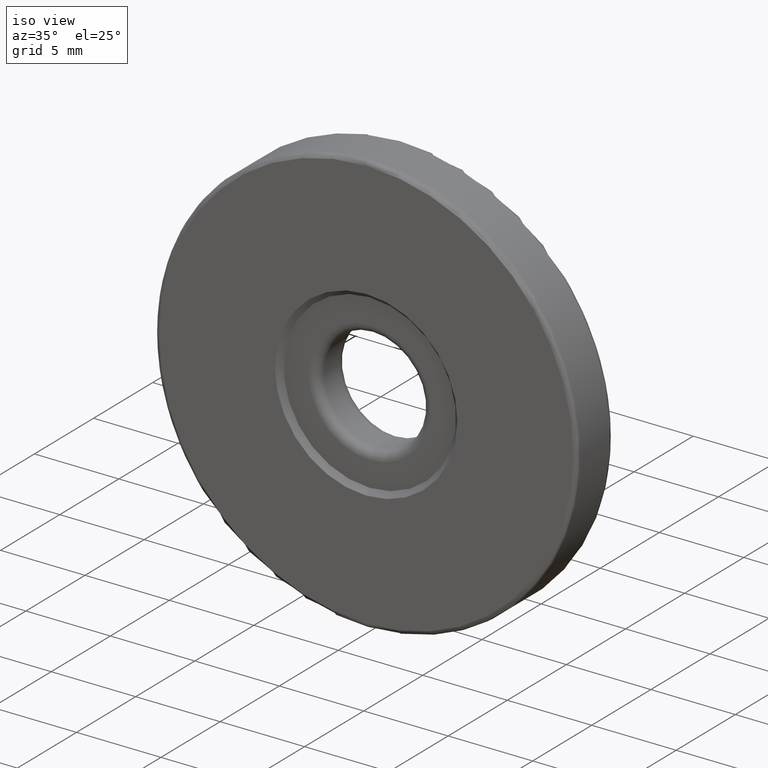
[diagram: clean part render]
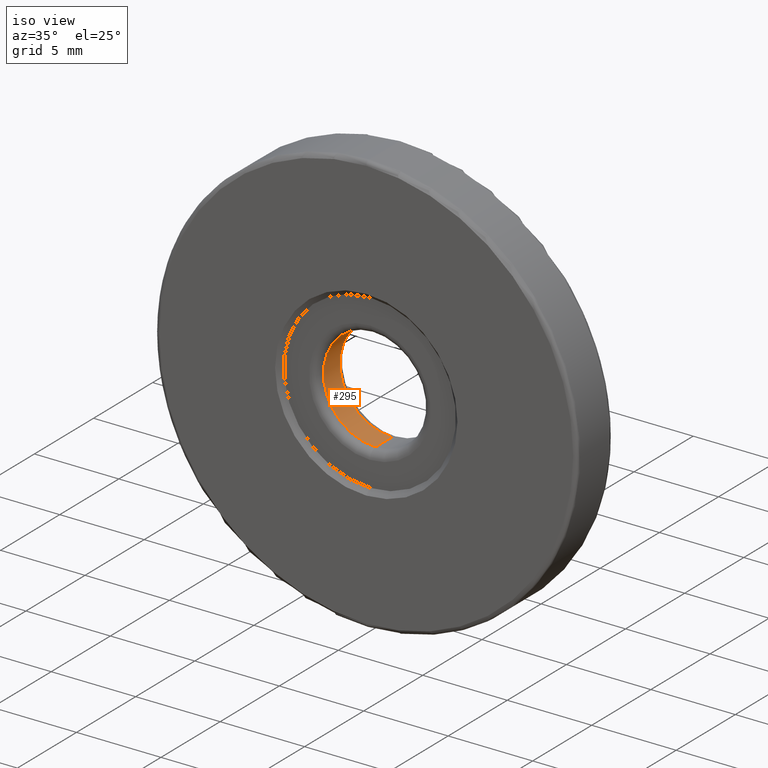
[diagram: same view with one face highlighted and labeled with its STEP entity id]
A machine part, iso view. The second image highlights one B-rep face of the part: STEP entity #295.
In plain terms, the highlighted cylindrical surface (partial cylindrical patch) has radius 3.1 mm, axis along (-0, 1, -0).
Its self-contained STEP definition (entity closure, byte-faithful):
#14 = DIRECTION ( 'NONE',  ( 0.0000000000000000000, 0.0000000000000000000, 1.000000000000000000 ) ) ;
#22 = VECTOR ( 'NONE', #591, 1000.000000000000000 ) ;
#28 = VERTEX_POINT ( 'NONE', #466 ) ;
#67 = LINE ( 'NONE', #394, #425 ) ;
#71 = CYLINDRICAL_SURFACE ( 'NONE', #282, 3.099999999999998757 ) ;
#115 = DIRECTION ( 'NONE',  ( -0.0000000000000000000, 1.000000000000000000, -0.0000000000000000000 ) ) ;
#127 = ORIENTED_EDGE ( 'NONE', *, *, #409, .T. ) ;
#144 = AXIS2_PLACEMENT_3D ( 'NONE', #269, #569, #271 ) ;
#147 = VERTEX_POINT ( 'NONE', #383 ) ;
#155 = CIRCLE ( 'NONE', #574, 3.099999999999998757 ) ;
#174 = CIRCLE ( 'NONE', #144, 3.099999999999998757 ) ;
#202 = EDGE_CURVE ( 'NONE', #147, #509, #599, .T. ) ;
#217 = DIRECTION ( 'NONE',  ( -0.0000000000000000000, 1.000000000000000000, -0.0000000000000000000 ) ) ;
#242 = ORIENTED_EDGE ( 'NONE', *, *, #202, .T. ) ;
#260 = CARTESIAN_POINT ( 'NONE',  ( -4.682026255059964726, -0.8949759769982746915, 25.00000000000000000 ) ) ;
#267 = ORIENTED_EDGE ( 'NONE', *, *, #315, .F. ) ;
#269 = CARTESIAN_POINT ( 'NONE',  ( -4.682026255059964726, -2.294975976998275158, 25.00000000000000000 ) ) ;
#271 = DIRECTION ( 'NONE',  ( 0.0000000000000000000, 0.0000000000000000000, -1.000000000000000000 ) ) ;
#282 = AXIS2_PLACEMENT_3D ( 'NONE', #392, #115, #318 ) ;
#295 = ADVANCED_FACE ( 'NONE', ( #390 ), #71, .F. ) ;
#313 = CARTESIAN_POINT ( 'NONE',  ( -4.682026255059964726, -3.094975976998274536, 21.90000000000000213 ) ) ;
#315 = EDGE_CURVE ( 'NONE', #326, #28, #67, .T. ) ;
#318 = DIRECTION ( 'NONE',  ( 0.0000000000000000000, 0.0000000000000000000, 1.000000000000000000 ) ) ;
#326 = VERTEX_POINT ( 'NONE', #347 ) ;
#331 = EDGE_CURVE ( 'NONE', #509, #28, #155, .T. ) ;
#347 = CARTESIAN_POINT ( 'NONE',  ( -4.682026255059964726, -2.294975976998275158, 28.10000000000000142 ) ) ;
#383 = CARTESIAN_POINT ( 'NONE',  ( -4.682026255059964726, -2.294975976998275158, 21.90000000000000213 ) ) ;
#390 = FACE_OUTER_BOUND ( 'NONE', #579, .T. ) ;
#392 = CARTESIAN_POINT ( 'NONE',  ( -4.682026255059964726, -3.094975976998274536, 25.00000000000000000 ) ) ;
#394 = CARTESIAN_POINT ( 'NONE',  ( -4.682026255059964726, -3.094975976998274536, 28.10000000000000142 ) ) ;
#395 = ORIENTED_EDGE ( 'NONE', *, *, #331, .T. ) ;
#409 = EDGE_CURVE ( 'NONE', #326, #147, #174, .T. ) ;
#425 = VECTOR ( 'NONE', #217, 1000.000000000000000 ) ;
#435 = DIRECTION ( 'NONE',  ( 0.0000000000000000000, 1.000000000000000000, 0.0000000000000000000 ) ) ;
#466 = CARTESIAN_POINT ( 'NONE',  ( -4.682026255059964726, -0.8949759769982746915, 28.10000000000000142 ) ) ;
#509 = VERTEX_POINT ( 'NONE', #608 ) ;
#569 = DIRECTION ( 'NONE',  ( 0.0000000000000000000, -1.000000000000000000, 0.0000000000000000000 ) ) ;
#574 = AXIS2_PLACEMENT_3D ( 'NONE', #260, #435, #14 ) ;
#579 = EDGE_LOOP ( 'NONE', ( #127, #242, #395, #267 ) ) ;
#591 = DIRECTION ( 'NONE',  ( -0.0000000000000000000, 1.000000000000000000, -0.0000000000000000000 ) ) ;
#599 = LINE ( 'NONE', #313, #22 ) ;
#608 = CARTESIAN_POINT ( 'NONE',  ( -4.682026255059964726, -0.8949759769982746915, 21.90000000000000213 ) ) ;